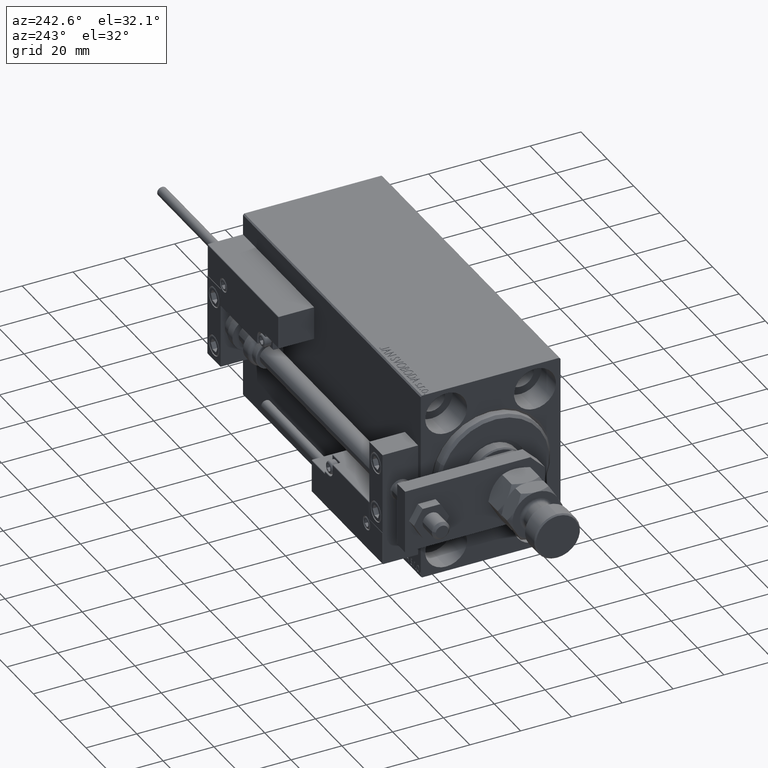
[diagram: clean part render]
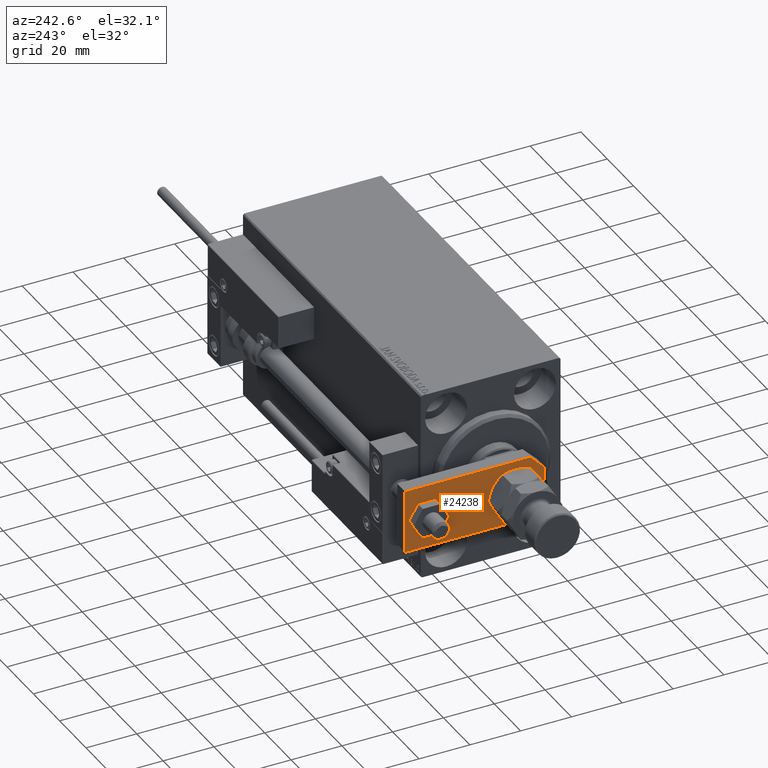
[diagram: same view with one face highlighted and labeled with its STEP entity id]
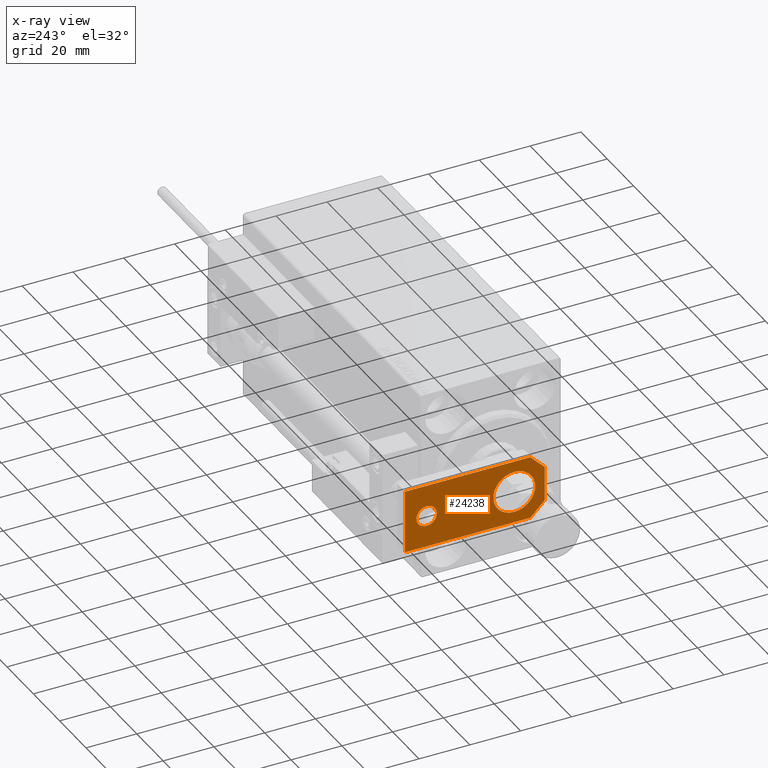
[diagram: x-ray of the same camera — body ghosted, the highlighted face saturated]
A machine part, auxiliary view. The second image highlights one B-rep face of the part: STEP entity #24238.
The next image is the same camera in x-ray: the body ghosted, the highlighted face saturated — about 0% of this face is hidden behind the body in this view.
In plain terms, the highlighted planar face has unit normal (-1, 0, 0).
Its self-contained STEP definition (entity closure, byte-faithful):
#536 = VERTEX_POINT ( 'NONE', #9633 ) ;
#2017 = DIRECTION ( 'NONE',  ( 1.000000000000000000, 0.000000000000000000, 0.000000000000000000 ) ) ;
#3707 = EDGE_CURVE ( 'NONE', #25002, #536, #22546, .T. ) ;
#5186 = DIRECTION ( 'NONE',  ( -0.000000000000000000, 0.000000000000000000, 1.000000000000000000 ) ) ;
#5428 = CARTESIAN_POINT ( 'NONE',  ( -1.432611055310774642E-16, 46.50000000000000000, 6.000000000000000000 ) ) ;
#5705 = EDGE_CURVE ( 'NONE', #33645, #20399, #24028, .T. ) ;
#5924 = DIRECTION ( 'NONE',  ( 0.000000000000000000, 0.000000000000000000, 1.000000000000000000 ) ) ;
#5936 = CARTESIAN_POINT ( 'NONE',  ( -6.840000000000012292, 4.814824860968089633E-32, 6.000000000000000000 ) ) ;
#5943 = CARTESIAN_POINT ( 'NONE',  ( -9.629649721936179265E-32, 11.99999999999999645, 6.000000000000000000 ) ) ;
#6404 = CARTESIAN_POINT ( 'NONE',  ( 6.839999999999998970, 4.814824860968089633E-32, 6.000000000000000000 ) ) ;
#6543 = CARTESIAN_POINT ( 'NONE',  ( 12.50000000000000355, 4.814824860968089633E-32, 6.000000000000000000 ) ) ;
#6763 = VERTEX_POINT ( 'NONE', #22241 ) ;
#7289 = DIRECTION ( 'NONE',  ( -9.462128050782584375E-17, -1.000000000000000000, 0.000000000000000000 ) ) ;
#7623 = CARTESIAN_POINT ( 'NONE',  ( 12.50000000000000355, 5.659999999999991260, 6.000000000000000000 ) ) ;
#7880 = VERTEX_POINT ( 'NONE', #15722 ) ;
#8077 = FACE_OUTER_BOUND ( 'NONE', #34972, .T. ) ;
#9109 = DIRECTION ( 'NONE',  ( 1.000000000000000000, 0.000000000000000000, 0.000000000000000000 ) ) ;
#9599 = DIRECTION ( 'NONE',  ( 0.000000000000000000, 0.000000000000000000, 1.000000000000000000 ) ) ;
#9633 = CARTESIAN_POINT ( 'NONE',  ( 8.250000000000000000, 11.99999999999999822, 6.000000000000000000 ) ) ;
#9680 = DIRECTION ( 'NONE',  ( -1.000000000000000000, 0.000000000000000000, 0.000000000000000000 ) ) ;
#9866 = DIRECTION ( 'NONE',  ( 0.000000000000000000, 0.000000000000000000, 1.000000000000000000 ) ) ;
#11196 = CARTESIAN_POINT ( 'NONE',  ( -12.49999999999999822, 55.00000000000000000, 6.000000000000000000 ) ) ;
#11219 = VERTEX_POINT ( 'NONE', #20160 ) ;
#12040 = EDGE_CURVE ( 'NONE', #536, #25002, #14121, .T. ) ;
#12549 = VERTEX_POINT ( 'NONE', #7623 ) ;
#14121 = CIRCLE ( 'NONE', #36623, 8.250000000000000000 ) ;
#14275 = ORIENTED_EDGE ( 'NONE', *, *, #38963, .F. ) ;
#14326 = EDGE_CURVE ( 'NONE', #20560, #11219, #34896, .T. ) ;
#14887 = DIRECTION ( 'NONE',  ( -6.308085367188389994E-17, 1.000000000000000000, 0.000000000000000000 ) ) ;
#14998 = DIRECTION ( 'NONE',  ( 1.000000000000000000, 0.000000000000000000, 0.000000000000000000 ) ) ;
#15408 = EDGE_CURVE ( 'NONE', #6763, #33645, #51102, .T. ) ;
#15722 = CARTESIAN_POINT ( 'NONE',  ( 12.50000000000000000, 55.00000000000000000, 6.000000000000000000 ) ) ;
#16380 = LINE ( 'NONE', #20544, #17811 ) ;
#16861 = ORIENTED_EDGE ( 'NONE', *, *, #12040, .F. ) ;
#16967 = CIRCLE ( 'NONE', #34464, 4.000000000000000888 ) ;
#17811 = VECTOR ( 'NONE', #35947, 1000.000000000000114 ) ;
#18046 = LINE ( 'NONE', #6543, #41966 ) ;
#18210 = DIRECTION ( 'NONE',  ( 1.000000000000000000, 0.000000000000000000, 0.000000000000000000 ) ) ;
#19233 = CARTESIAN_POINT ( 'NONE',  ( 4.000000000000000888, 46.50000000000000000, 6.000000000000000000 ) ) ;
#19321 = ORIENTED_EDGE ( 'NONE', *, *, #5705, .T. ) ;
#19771 = DIRECTION ( 'NONE',  ( 1.000000000000000000, 0.000000000000000000, 0.000000000000000000 ) ) ;
#20160 = CARTESIAN_POINT ( 'NONE',  ( -4.000000000000000888, 46.50000000000000000, 6.000000000000000000 ) ) ;
#20399 = VERTEX_POINT ( 'NONE', #5936 ) ;
#20544 = CARTESIAN_POINT ( 'NONE',  ( 3.419999999999990603, -3.419999999999999485, 6.000000000000000000 ) ) ;
#20560 = VERTEX_POINT ( 'NONE', #19233 ) ;
#21944 = LINE ( 'NONE', #37857, #32006 ) ;
#22130 = VERTEX_POINT ( 'NONE', #6404 ) ;
#22241 = CARTESIAN_POINT ( 'NONE',  ( -12.49999999999999822, 55.00000000000000000, 6.000000000000000000 ) ) ;
#22546 = CIRCLE ( 'NONE', #35885, 8.250000000000000000 ) ;
#23432 = LINE ( 'NONE', #39345, #38573 ) ;
#23566 = CARTESIAN_POINT ( 'NONE',  ( -12.50000000000000355, 5.660000000000005471, 6.000000000000000000 ) ) ;
#24028 = LINE ( 'NONE', #48002, #47219 ) ;
#24177 = ORIENTED_EDGE ( 'NONE', *, *, #27183, .T. ) ;
#24238 = ADVANCED_FACE ( 'NONE', ( #25015, #8077, #32838 ), #28926, .T. ) ;
#25002 = VERTEX_POINT ( 'NONE', #26187 ) ;
#25015 = FACE_BOUND ( 'NONE', #47809, .T. ) ;
#25455 = EDGE_CURVE ( 'NONE', #22130, #12549, #16380, .T. ) ;
#26187 = CARTESIAN_POINT ( 'NONE',  ( -8.250000000000000000, 11.99999999999999645, 6.000000000000000000 ) ) ;
#27183 = EDGE_CURVE ( 'NONE', #20399, #22130, #23432, .T. ) ;
#28926 = PLANE ( 'NONE',  #39449 ) ;
#29643 = EDGE_CURVE ( 'NONE', #12549, #7880, #18046, .T. ) ;
#31600 = DIRECTION ( 'NONE',  ( 0.7071067811865467956, -0.7071067811865483499, 0.000000000000000000 ) ) ;
#32006 = VECTOR ( 'NONE', #9680, 1000.000000000000000 ) ;
#32838 = FACE_BOUND ( 'NONE', #35398, .T. ) ;
#33645 = VERTEX_POINT ( 'NONE', #23566 ) ;
#34464 = AXIS2_PLACEMENT_3D ( 'NONE', #5428, #9866, #14998 ) ;
#34880 = ORIENTED_EDGE ( 'NONE', *, *, #15408, .T. ) ;
#34896 = CIRCLE ( 'NONE', #40740, 4.000000000000000888 ) ;
#34972 = EDGE_LOOP ( 'NONE', ( #34880, #19321, #24177, #43405, #44515, #44295 ) ) ;
#35398 = EDGE_LOOP ( 'NONE', ( #38041, #16861 ) ) ;
#35609 = CARTESIAN_POINT ( 'NONE',  ( -1.432611055310774642E-16, 46.50000000000000000, 6.000000000000000000 ) ) ;
#35885 = AXIS2_PLACEMENT_3D ( 'NONE', #45048, #5924, #2017 ) ;
#35947 = DIRECTION ( 'NONE',  ( 0.7071067811865483499, 0.7071067811865465735, -0.000000000000000000 ) ) ;
#36623 = AXIS2_PLACEMENT_3D ( 'NONE', #5943, #9599, #18210 ) ;
#37857 = CARTESIAN_POINT ( 'NONE',  ( 12.50000000000000000, 55.00000000000000000, 6.000000000000000000 ) ) ;
#38041 = ORIENTED_EDGE ( 'NONE', *, *, #3707, .F. ) ;
#38573 = VECTOR ( 'NONE', #19771, 1000.000000000000000 ) ;
#38963 = EDGE_CURVE ( 'NONE', #11219, #20560, #16967, .T. ) ;
#39119 = VECTOR ( 'NONE', #7289, 1000.000000000000000 ) ;
#39345 = CARTESIAN_POINT ( 'NONE',  ( -12.50000000000000355, 4.814824860968089633E-32, 6.000000000000000000 ) ) ;
#39429 = EDGE_CURVE ( 'NONE', #7880, #6763, #21944, .T. ) ;
#39449 = AXIS2_PLACEMENT_3D ( 'NONE', #44832, #5186, #9109 ) ;
#40740 = AXIS2_PLACEMENT_3D ( 'NONE', #35609, #43445, #50747 ) ;
#41966 = VECTOR ( 'NONE', #14887, 1000.000000000000000 ) ;
#43405 = ORIENTED_EDGE ( 'NONE', *, *, #25455, .T. ) ;
#43445 = DIRECTION ( 'NONE',  ( 0.000000000000000000, 0.000000000000000000, 1.000000000000000000 ) ) ;
#44295 = ORIENTED_EDGE ( 'NONE', *, *, #39429, .T. ) ;
#44515 = ORIENTED_EDGE ( 'NONE', *, *, #29643, .T. ) ;
#44832 = CARTESIAN_POINT ( 'NONE',  ( 0.000000000000000000, 0.000000000000000000, 6.000000000000000000 ) ) ;
#45048 = CARTESIAN_POINT ( 'NONE',  ( -9.629649721936179265E-32, 11.99999999999999645, 6.000000000000000000 ) ) ;
#47219 = VECTOR ( 'NONE', #31600, 1000.000000000000000 ) ;
#47809 = EDGE_LOOP ( 'NONE', ( #14275, #51287 ) ) ;
#48002 = CARTESIAN_POINT ( 'NONE',  ( -3.420000000000013696, -3.420000000000006146, 6.000000000000000000 ) ) ;
#50747 = DIRECTION ( 'NONE',  ( 1.000000000000000000, 0.000000000000000000, 0.000000000000000000 ) ) ;
#51102 = LINE ( 'NONE', #11196, #39119 ) ;
#51287 = ORIENTED_EDGE ( 'NONE', *, *, #14326, .F. ) ;